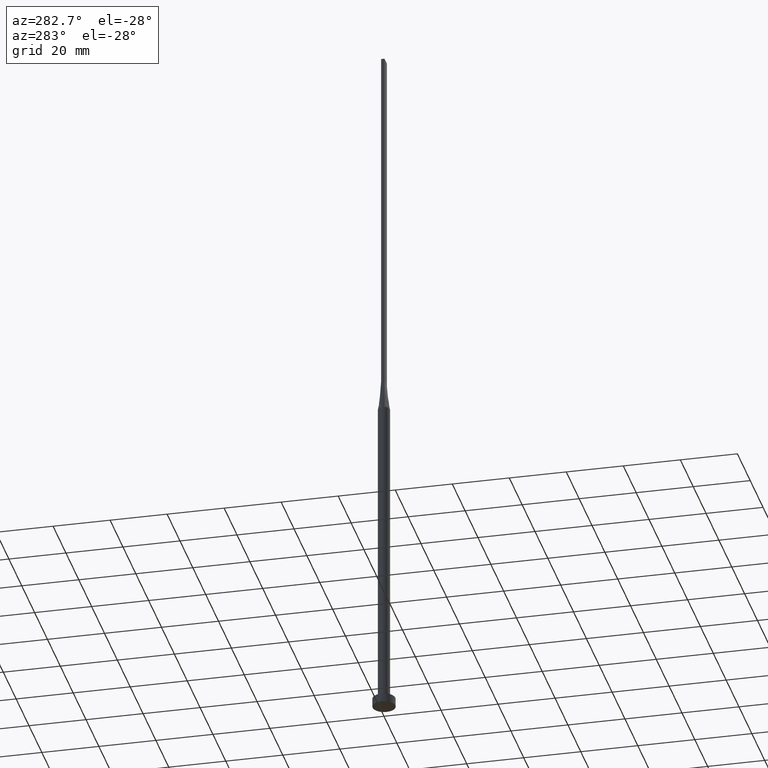
[diagram: clean part render]
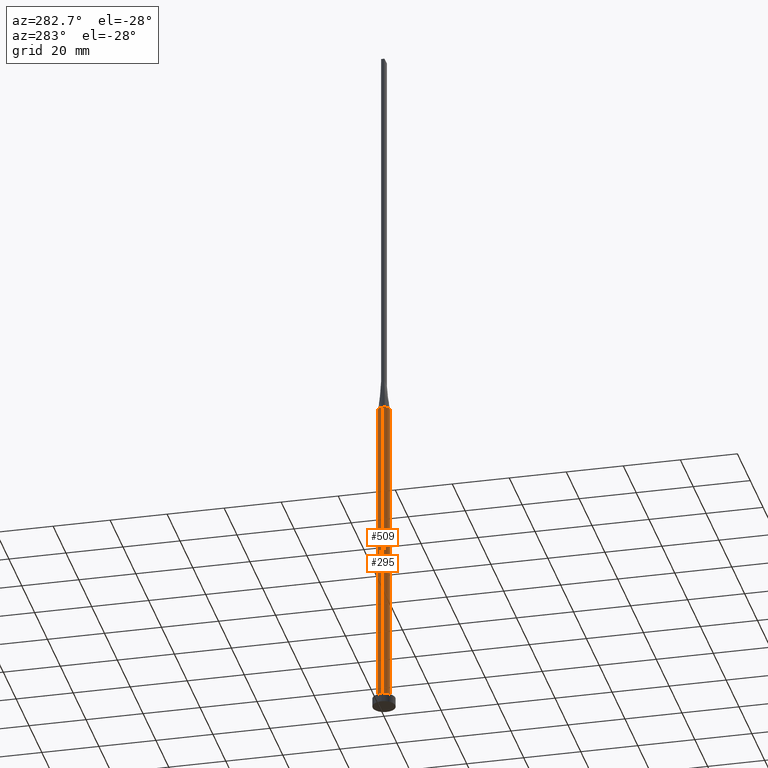
[diagram: same view with one multi-face feature highlighted, each face labeled with its STEP entity id]
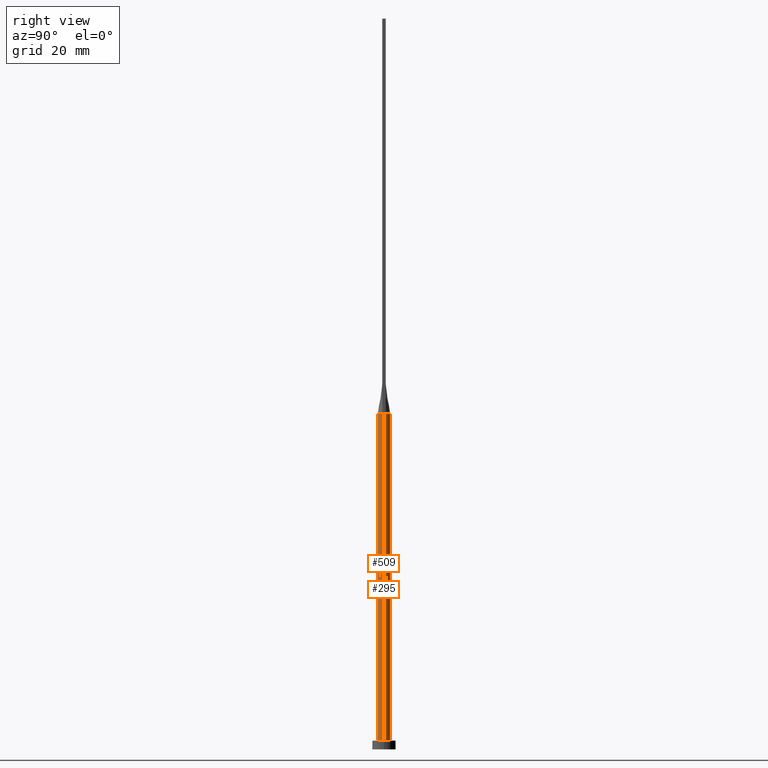
[diagram: same view with one multi-face feature highlighted, each face labeled with its STEP entity id]
A machine part, auxiliary view. The highlighted faces form ONE feature: a constant-radius fillet chain: 2 tangent blend faces with common blend radius 2.1 mm. The faces share edges in the B-rep.
A second angle (right view) of the same feature is appended — it is thin or edge-on in the first view.
Their STEP definitions:
[1] entity #509 (Cylinder):
#15 = EDGE_CURVE ( 'NONE', #528, #236, #26, .T. ) ;
#26 = CIRCLE ( 'NONE', #101, 2.100000000000000089 ) ;
#30 = CARTESIAN_POINT ( 'NONE',  ( -2.002601997802567535, -0.6324010168594718095, 115.0000000000000000 ) ) ;
#31 = CARTESIAN_POINT ( 'NONE',  ( 0.000000000000000000, 0.000000000000000000, 3.000000000000000000 ) ) ;
#37 = CIRCLE ( 'NONE', #546, 2.100000000000000089 ) ;
#54 = DIRECTION ( 'NONE',  ( -0.000000000000000000, -0.000000000000000000, -1.000000000000000000 ) ) ;
#58 = CARTESIAN_POINT ( 'NONE',  ( 0.000000000000000000, 0.000000000000000000, 115.0000000000000000 ) ) ;
#70 = ORIENTED_EDGE ( 'NONE', *, *, #98, .T. ) ;
#81 = DIRECTION ( 'NONE',  ( 0.000000000000000000, 0.000000000000000000, 1.000000000000000000 ) ) ;
#98 = EDGE_CURVE ( 'NONE', #528, #130, #257, .T. ) ;
#101 = AXIS2_PLACEMENT_3D ( 'NONE', #172, #469, #579 ) ;
#109 = VERTEX_POINT ( 'NONE', #558 ) ;
#113 = CARTESIAN_POINT ( 'NONE',  ( -2.100000000000000089, -1.284268198382905442E-16, 114.9999999999999858 ) ) ;
#114 = DIRECTION ( 'NONE',  ( -0.000000000000000000, -0.000000000000000000, -1.000000000000000000 ) ) ;
#118 = CARTESIAN_POINT ( 'NONE',  ( 2.100000000000000089, 2.571758278209441957E-16, 3.000000000000000000 ) ) ;
#125 = CARTESIAN_POINT ( 'NONE',  ( 2.002626276893244128, -0.6324088233005202841, 115.0000000000000000 ) ) ;
#130 = VERTEX_POINT ( 'NONE', #197 ) ;
#139 = CARTESIAN_POINT ( 'NONE',  ( 2.100000000000000089, 2.571758278209441957E-16, 115.0000000000000000 ) ) ;
#151 = ORIENTED_EDGE ( 'NONE', *, *, #15, .F. ) ;
#165 = FACE_OUTER_BOUND ( 'NONE', #417, .T. ) ;
#170 = VERTEX_POINT ( 'NONE', #125 ) ;
#172 = CARTESIAN_POINT ( 'NONE',  ( 0.000000000000000000, 0.000000000000000000, 115.0000000000000000 ) ) ;
#173 = DIRECTION ( 'NONE',  ( -1.000000000000000000, 0.000000000000000000, 0.000000000000000000 ) ) ;
#192 = CIRCLE ( 'NONE', #279, 2.100000000000000089 ) ;
#197 = CARTESIAN_POINT ( 'NONE',  ( -2.100000000000000089, 0.000000000000000000, 3.000000000000000000 ) ) ;
#205 = DIRECTION ( 'NONE',  ( 1.000000000000000000, 0.000000000000000000, 0.000000000000000000 ) ) ;
#208 = DIRECTION ( 'NONE',  ( 1.000000000000000000, -1.776356839400250465E-15, 0.000000000000000000 ) ) ;
#209 = CIRCLE ( 'NONE', #524, 2.100000000000000089 ) ;
#215 = DIRECTION ( 'NONE',  ( -0.000000000000000000, -0.000000000000000000, -1.000000000000000000 ) ) ;
#228 = ORIENTED_EDGE ( 'NONE', *, *, #516, .T. ) ;
#230 = VERTEX_POINT ( 'NONE', #118 ) ;
#236 = VERTEX_POINT ( 'NONE', #30 ) ;
#250 = CARTESIAN_POINT ( 'NONE',  ( 0.000000000000000000, 0.000000000000000000, 115.0000000000000000 ) ) ;
#257 = LINE ( 'NONE', #271, #329 ) ;
#271 = CARTESIAN_POINT ( 'NONE',  ( -2.100000000000000089, 0.000000000000000000, 115.0000000000000000 ) ) ;
#272 = DIRECTION ( 'NONE',  ( 1.000000000000000000, 0.000000000000000000, 0.000000000000000000 ) ) ;
#279 = AXIS2_PLACEMENT_3D ( 'NONE', #31, #371, #205 ) ;
#280 = EDGE_CURVE ( 'NONE', #170, #109, #209, .T. ) ;
#288 = ORIENTED_EDGE ( 'NONE', *, *, #280, .F. ) ;
#291 = VECTOR ( 'NONE', #215, 1000.000000000000000 ) ;
#329 = VECTOR ( 'NONE', #54, 1000.000000000000000 ) ;
#344 = LINE ( 'NONE', #139, #291 ) ;
#371 = DIRECTION ( 'NONE',  ( 0.000000000000000000, 0.000000000000000000, 1.000000000000000000 ) ) ;
#374 = AXIS2_PLACEMENT_3D ( 'NONE', #570, #114, #173 ) ;
#379 = EDGE_CURVE ( 'NONE', #236, #170, #37, .T. ) ;
#417 = EDGE_LOOP ( 'NONE', ( #454, #288, #464, #151, #70, #228 ) ) ;
#454 = ORIENTED_EDGE ( 'NONE', *, *, #559, .F. ) ;
#464 = ORIENTED_EDGE ( 'NONE', *, *, #379, .F. ) ;
#469 = DIRECTION ( 'NONE',  ( 0.000000000000000000, 0.000000000000000000, 1.000000000000000000 ) ) ;
#509 = ADVANCED_FACE ( 'NONE', ( #165 ), #564, .T. ) ;
#516 = EDGE_CURVE ( 'NONE', #130, #230, #192, .T. ) ;
#524 = AXIS2_PLACEMENT_3D ( 'NONE', #250, #81, #208 ) ;
#528 = VERTEX_POINT ( 'NONE', #113 ) ;
#546 = AXIS2_PLACEMENT_3D ( 'NONE', #58, #554, #272 ) ;
#554 = DIRECTION ( 'NONE',  ( 0.000000000000000000, 0.000000000000000000, 1.000000000000000000 ) ) ;
#558 = CARTESIAN_POINT ( 'NONE',  ( 2.100000000000000089, 3.372022381799045987E-17, 114.9999999999999858 ) ) ;
#559 = EDGE_CURVE ( 'NONE', #109, #230, #344, .T. ) ;
#564 = CYLINDRICAL_SURFACE ( 'NONE', #374, 2.100000000000000089 ) ;
#570 = CARTESIAN_POINT ( 'NONE',  ( 0.000000000000000000, 0.000000000000000000, 115.0000000000000000 ) ) ;
#579 = DIRECTION ( 'NONE',  ( 1.000000000000000000, 0.000000000000000000, 0.000000000000000000 ) ) ;
[2] entity #295 (Cylinder):
#4 = CARTESIAN_POINT ( 'NONE',  ( 0.000000000000000000, 0.000000000000000000, 3.000000000000000000 ) ) ;
#5 = ORIENTED_EDGE ( 'NONE', *, *, #559, .T. ) ;
#7 = CIRCLE ( 'NONE', #133, 2.100000000000000089 ) ;
#11 = DIRECTION ( 'NONE',  ( 1.000000000000000000, 0.000000000000000000, 0.000000000000000000 ) ) ;
#17 = CARTESIAN_POINT ( 'NONE',  ( 2.002598039528881380, 0.6323997261616642884, 115.0000000000000000 ) ) ;
#23 = CARTESIAN_POINT ( 'NONE',  ( -2.002622288503867587, 0.6324075186587619912, 115.0000000000000000 ) ) ;
#54 = DIRECTION ( 'NONE',  ( -0.000000000000000000, -0.000000000000000000, -1.000000000000000000 ) ) ;
#66 = CARTESIAN_POINT ( 'NONE',  ( -1.952271707612931895, 0.7915068550356629817, 115.0000000000000284 ) ) ;
#77 = CARTESIAN_POINT ( 'NONE',  ( -0.9765948449220482885, 1.875594675604967509, 115.0000000000000284 ) ) ;
#87 = ORIENTED_EDGE ( 'NONE', *, *, #461, .F. ) ;
#98 = EDGE_CURVE ( 'NONE', #528, #130, #257, .T. ) ;
#103 = CARTESIAN_POINT ( 'NONE',  ( 1.184262492297964098, 1.748903470433445628, 114.9999999999999716 ) ) ;
#109 = VERTEX_POINT ( 'NONE', #558 ) ;
#111 = CARTESIAN_POINT ( 'NONE',  ( 1.952271707612931895, 0.7915068550356627597, 115.0000000000000000 ) ) ;
#112 = EDGE_LOOP ( 'NONE', ( #188, #5, #223, #327, #486, #87 ) ) ;
#113 = CARTESIAN_POINT ( 'NONE',  ( -2.100000000000000089, -1.284268198382905442E-16, 114.9999999999999858 ) ) ;
#118 = CARTESIAN_POINT ( 'NONE',  ( 2.100000000000000089, 2.571758278209441957E-16, 3.000000000000000000 ) ) ;
#130 = VERTEX_POINT ( 'NONE', #197 ) ;
#133 = AXIS2_PLACEMENT_3D ( 'NONE', #273, #560, #11 ) ;
#139 = CARTESIAN_POINT ( 'NONE',  ( 2.100000000000000089, 2.571758278209441957E-16, 115.0000000000000000 ) ) ;
#141 = EDGE_CURVE ( 'NONE', #397, #528, #494, .T. ) ;
#150 = DIRECTION ( 'NONE',  ( 1.000000000000000000, 0.000000000000000000, 0.000000000000000000 ) ) ;
#155 = CARTESIAN_POINT ( 'NONE',  ( 0.000000000000000000, 0.000000000000000000, 115.0000000000000000 ) ) ;
#188 = ORIENTED_EDGE ( 'NONE', *, *, #430, .F. ) ;
#191 = CIRCLE ( 'NONE', #395, 2.100000000000000089 ) ;
#194 = VERTEX_POINT ( 'NONE', #17 ) ;
#197 = CARTESIAN_POINT ( 'NONE',  ( -2.100000000000000089, 0.000000000000000000, 3.000000000000000000 ) ) ;
#211 = EDGE_CURVE ( 'NONE', #230, #130, #191, .T. ) ;
#215 = DIRECTION ( 'NONE',  ( -0.000000000000000000, -0.000000000000000000, -1.000000000000000000 ) ) ;
#223 = ORIENTED_EDGE ( 'NONE', *, *, #211, .T. ) ;
#230 = VERTEX_POINT ( 'NONE', #118 ) ;
#233 = AXIS2_PLACEMENT_3D ( 'NONE', #155, #361, #321 ) ;
#245 = CARTESIAN_POINT ( 'NONE',  ( -1.667357759214464830, 1.291791096182927534, 115.0000000000000000 ) ) ;
#257 = LINE ( 'NONE', #271, #329 ) ;
#271 = CARTESIAN_POINT ( 'NONE',  ( -2.100000000000000089, 0.000000000000000000, 115.0000000000000000 ) ) ;
#273 = CARTESIAN_POINT ( 'NONE',  ( 0.000000000000000000, 0.000000000000000000, 115.0000000000000000 ) ) ;
#281 = CARTESIAN_POINT ( 'NONE',  ( 1.878511276496548366, 0.9591670956957804028, 115.0000000000000000 ) ) ;
#291 = VECTOR ( 'NONE', #215, 1000.000000000000000 ) ;
#295 = ADVANCED_FACE ( 'NONE', ( #336 ), #431, .T. ) ;
#321 = DIRECTION ( 'NONE',  ( 1.000000000000000000, 0.000000000000000000, 0.000000000000000000 ) ) ;
#325 = CARTESIAN_POINT ( 'NONE',  ( -0.5124799074986362557, 2.051574327850739454, 115.0000000000000284 ) ) ;
#327 = ORIENTED_EDGE ( 'NONE', *, *, #98, .F. ) ;
#329 = VECTOR ( 'NONE', #54, 1000.000000000000000 ) ;
#336 = FACE_OUTER_BOUND ( 'NONE', #112, .T. ) ;
#344 = LINE ( 'NONE', #139, #291 ) ;
#361 = DIRECTION ( 'NONE',  ( 0.000000000000000000, 0.000000000000000000, 1.000000000000000000 ) ) ;
#363 = CARTESIAN_POINT ( 'NONE',  ( 0.5124799074986362557, 2.051574327850739454, 115.0000000000000568 ) ) ;
#373 = CARTESIAN_POINT ( 'NONE',  ( -1.529462611013499451, 1.456669187245239527, 114.9999999999999858 ) ) ;
#395 = AXIS2_PLACEMENT_3D ( 'NONE', #4, #556, #150 ) ;
#397 = VERTEX_POINT ( 'NONE', #462 ) ;
#413 = CARTESIAN_POINT ( 'NONE',  ( 0.9765948449220478444, 1.875594675604967065, 115.0000000000000000 ) ) ;
#430 = EDGE_CURVE ( 'NONE', #109, #194, #7, .T. ) ;
#431 = CYLINDRICAL_SURFACE ( 'NONE', #438, 2.100000000000000089 ) ;
#438 = AXIS2_PLACEMENT_3D ( 'NONE', #523, #547, #491 ) ;
#446 = CARTESIAN_POINT ( 'NONE',  ( 1.667357759214464608, 1.291791096182927090, 115.0000000000000142 ) ) ;
#460 = CARTESIAN_POINT ( 'NONE',  ( -1.878511276496549032, 0.9591670956957809580, 115.0000000000000284 ) ) ;
#461 = EDGE_CURVE ( 'NONE', #194, #397, #479, .T. ) ;
#462 = CARTESIAN_POINT ( 'NONE',  ( -2.002622288503867587, 0.6324075186587619912, 115.0000000000000000 ) ) ;
#471 = CARTESIAN_POINT ( 'NONE',  ( -0.2565105576742073845, 2.100000000000000533, 115.0000000000000284 ) ) ;
#479 = B_SPLINE_CURVE_WITH_KNOTS ( 'NONE', 3,
 ( #504, #111, #281, #446, #548, #103, #413, #363, #522, #471, #325, #77, #566, #373, #245, #460, #66, #23 ),
 .UNSPECIFIED., .F., .F.,
 ( 4, 2, 2, 2, 2, 2, 2, 2, 4 ),
 ( 0.000000000000000000, 0.1249999999999999167, 0.2499999999999998890, 0.3749999999999998335, 0.4999999999999998890, 0.6249999999999998890, 0.7499999999999998890, 0.8750000000000000000, 1.000000000000000000 ),
 .UNSPECIFIED. ) ;
#486 = ORIENTED_EDGE ( 'NONE', *, *, #141, .F. ) ;
#491 = DIRECTION ( 'NONE',  ( -1.000000000000000000, 0.000000000000000000, 0.000000000000000000 ) ) ;
#494 = CIRCLE ( 'NONE', #233, 2.100000000000000089 ) ;
#504 = CARTESIAN_POINT ( 'NONE',  ( 2.002598039528881380, 0.6323997261616642884, 115.0000000000000000 ) ) ;
#522 = CARTESIAN_POINT ( 'NONE',  ( 0.2565105576742081062, 2.100000000000000533, 115.0000000000000426 ) ) ;
#523 = CARTESIAN_POINT ( 'NONE',  ( 0.000000000000000000, 0.000000000000000000, 115.0000000000000000 ) ) ;
#528 = VERTEX_POINT ( 'NONE', #113 ) ;
#547 = DIRECTION ( 'NONE',  ( -0.000000000000000000, -0.000000000000000000, -1.000000000000000000 ) ) ;
#548 = CARTESIAN_POINT ( 'NONE',  ( 1.529462611013499451, 1.456669187245239527, 115.0000000000000142 ) ) ;
#556 = DIRECTION ( 'NONE',  ( 0.000000000000000000, 0.000000000000000000, 1.000000000000000000 ) ) ;
#558 = CARTESIAN_POINT ( 'NONE',  ( 2.100000000000000089, 3.372022381799045987E-17, 114.9999999999999858 ) ) ;
#559 = EDGE_CURVE ( 'NONE', #109, #230, #344, .T. ) ;
#560 = DIRECTION ( 'NONE',  ( 0.000000000000000000, 0.000000000000000000, 1.000000000000000000 ) ) ;
#566 = CARTESIAN_POINT ( 'NONE',  ( -1.184262492297963876, 1.748903470433446294, 115.0000000000000142 ) ) ;